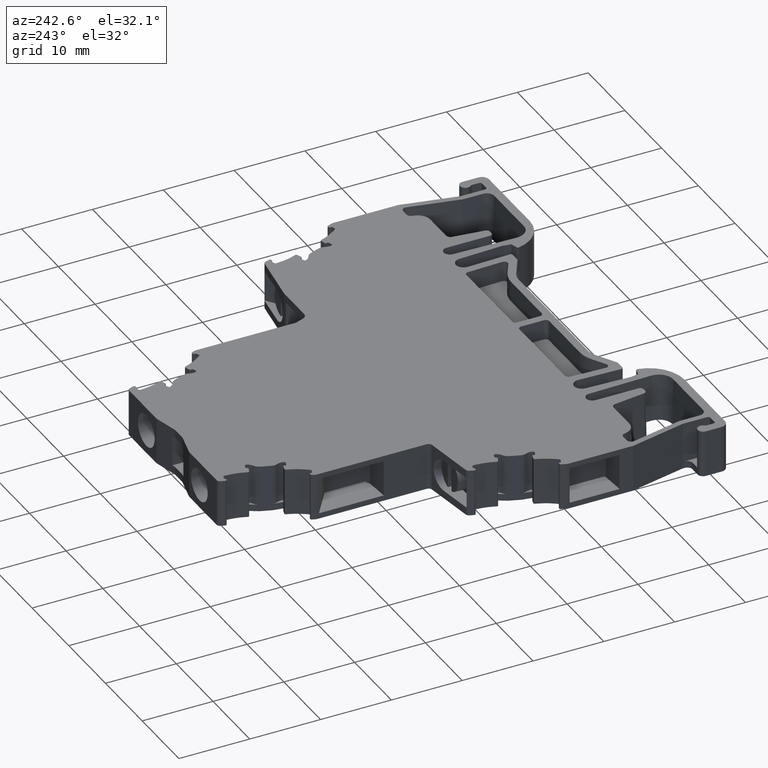
[diagram: clean part render]
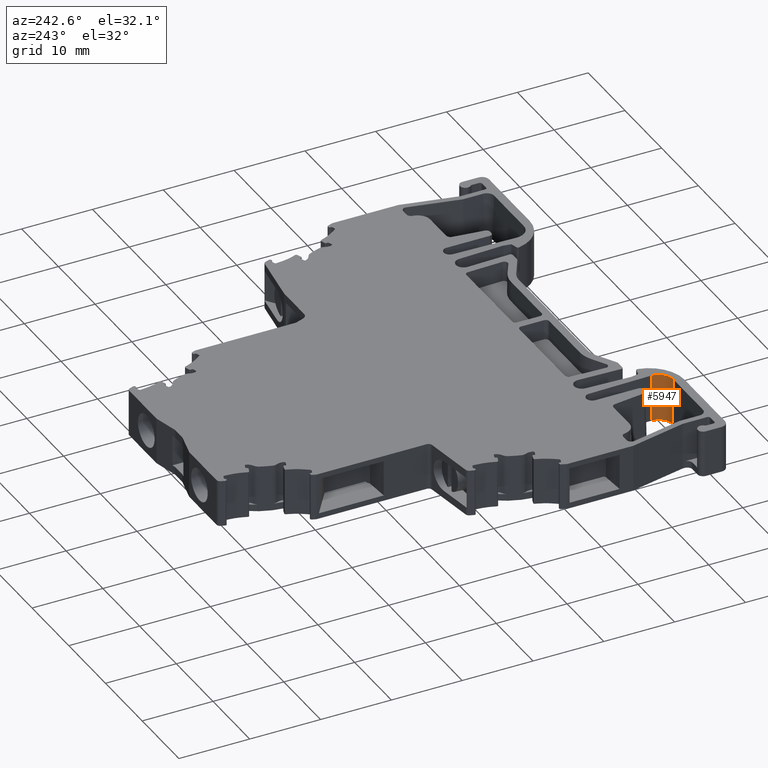
[diagram: same view with one face highlighted and labeled with its STEP entity id]
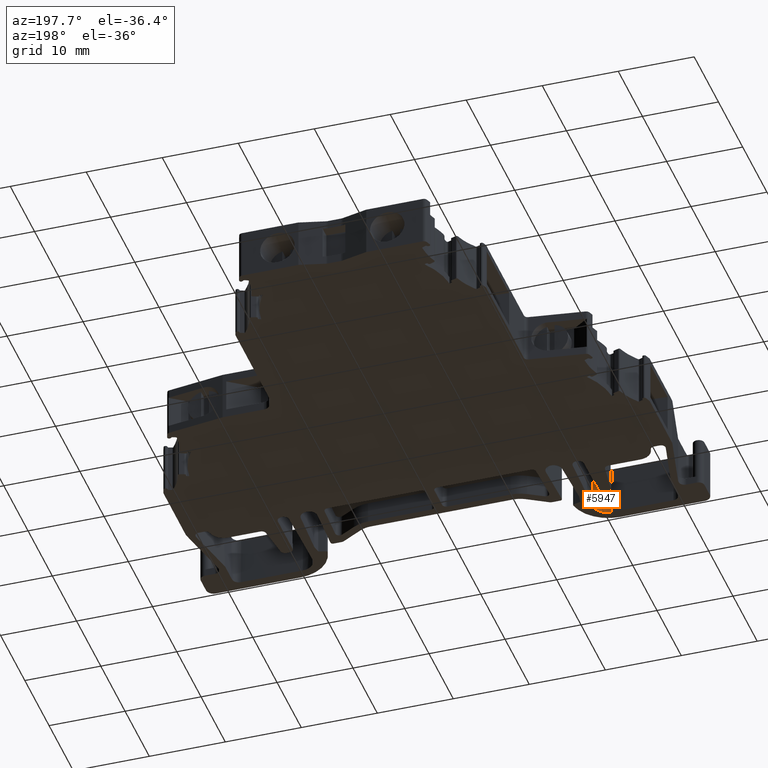
[diagram: same view with one face highlighted and labeled with its STEP entity id]
A machine part, auxiliary view. The second image highlights one B-rep face of the part: STEP entity #5947.
A second angle (auxiliary view) of the same face is appended — the face is thin or edge-on in the first view.
In plain terms, the highlighted conical surface has half-angle 1 deg.
Its self-contained STEP definition (entity closure, byte-faithful):
#277 = VERTEX_POINT ( 'NONE', #12308 ) ;
#294 = VERTEX_POINT ( 'NONE', #12318 ) ;
#1763 = VERTEX_POINT ( 'NONE', #12934 ) ;
#1796 = VERTEX_POINT ( 'NONE', #13010 ) ;
#1834 = ORIENTED_EDGE ( 'NONE', *, *, #4746, .F. ) ;
#1853 = ORIENTED_EDGE ( 'NONE', *, *, #4741, .F. ) ;
#1857 = ORIENTED_EDGE ( 'NONE', *, *, #4632, .T. ) ;
#1865 = ORIENTED_EDGE ( 'NONE', *, *, #4474, .F. ) ;
#3105 = FACE_OUTER_BOUND ( 'NONE', #5283, .T. ) ;
#3107 = CARTESIAN_POINT ( 'NONE',  ( -20.34869600087970200, -28.33103880139611900, 5.858087449894355800 ) ) ;
#3133 = DIRECTION ( 'NONE',  ( 1.000000000000000000, 0.0000000000000000000, 0.0000000000000000000 ) ) ;
#3134 = DIRECTION ( 'NONE',  ( 0.0000000000000000000, -0.0000000000000000000, 1.000000000000000000 ) ) ;
#4474 = EDGE_CURVE ( 'NONE', #277, #1763, #9584, .T. ) ;
#4632 = EDGE_CURVE ( 'NONE', #294, #1796, #9721, .T. ) ;
#4741 = EDGE_CURVE ( 'NONE', #1763, #1796, #11612, .T. ) ;
#4746 = EDGE_CURVE ( 'NONE', #294, #277, #11643, .T. ) ;
#5283 = EDGE_LOOP ( 'NONE', ( #1834, #1857, #1853, #1865 ) ) ;
#5947 = ADVANCED_FACE ( 'NONE', ( #3105 ), #11313, .F. ) ;
#7036 = DIRECTION ( 'NONE',  ( 1.000000000000000000, 0.0000000000000000000, 0.0000000000000000000 ) ) ;
#7070 = CARTESIAN_POINT ( 'NONE',  ( -20.34869600087970200, -28.33103880139611900, 6.258087449936324400 ) ) ;
#7072 = DIRECTION ( 'NONE',  ( -0.0000000000000000000, -0.0000000000000000000, -1.000000000000000000 ) ) ;
#8764 = DIRECTION ( 'NONE',  ( -0.0000000000000000000, -0.0000000000000000000, -1.000000000000000000 ) ) ;
#8769 = DIRECTION ( 'NONE',  ( 1.000000000000000000, 0.0000000000000000000, 0.0000000000000000000 ) ) ;
#8770 = CARTESIAN_POINT ( 'NONE',  ( -20.34869600087970200, -28.33103880139611900, -0.3419125500636775400 ) ) ;
#9580 = AXIS2_PLACEMENT_3D ( 'NONE', #7070, #7072, #7036 ) ;
#9584 = CIRCLE ( 'NONE', #9580, 2.006545649362624600 ) ;
#9713 = AXIS2_PLACEMENT_3D ( 'NONE', #8770, #8764, #8769 ) ;
#9721 = CIRCLE ( 'NONE', #9713, 1.891342220835649200 ) ;
#9823 = VECTOR ( 'NONE', #11626, 1000.000000000000100 ) ;
#9856 = VECTOR ( 'NONE', #11615, 999.9999999999998900 ) ;
#11313 = CONICAL_SURFACE ( 'NONE', #11322, 1.999563623390560700, 0.01745329252005517100 ) ;
#11322 = AXIS2_PLACEMENT_3D ( 'NONE', #3107, #3134, #3133 ) ;
#11612 = LINE ( 'NONE', #11650, #9823 ) ;
#11615 = DIRECTION ( 'NONE',  ( 0.01745240643739537400, 0.0000000000000000000, 0.9998476951563893800 ) ) ;
#11626 = DIRECTION ( 'NONE',  ( -0.0000000000000000000, 0.01745240643728355000, -0.9998476951563911600 ) ) ;
#11643 = LINE ( 'NONE', #11652, #9856 ) ;
#11650 = CARTESIAN_POINT ( 'NONE',  ( -20.34606355035958100, -30.33103706896024900, 5.883087449936319900 ) ) ;
#11652 = CARTESIAN_POINT ( 'NONE',  ( -18.34913237748914100, -28.33103880139611900, 5.858087449894355800 ) ) ;
#12308 = CARTESIAN_POINT ( 'NONE',  ( -18.34215035151707700, -28.33103880139611900, 6.258087449936324400 ) ) ;
#12318 = CARTESIAN_POINT ( 'NONE',  ( -18.45735378004405200, -28.33103880139611900, -0.3419125500636775400 ) ) ;
#12934 = CARTESIAN_POINT ( 'NONE',  ( -20.34606355035958100, -30.33758271830833300, 6.258087449936324400 ) ) ;
#13010 = CARTESIAN_POINT ( 'NONE',  ( -20.34606355035958100, -30.22237928978209400, -0.3419125500636775400 ) ) ;